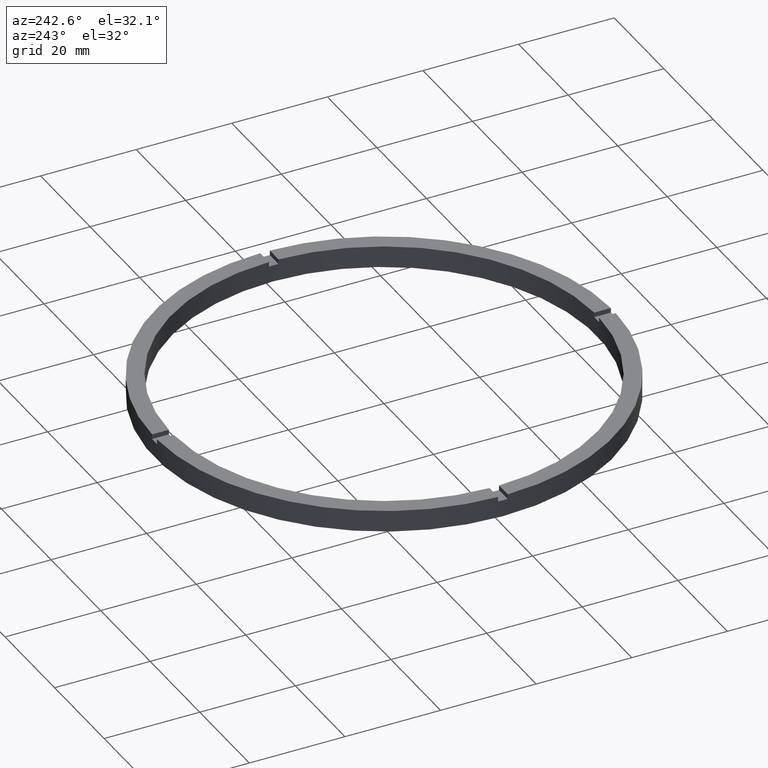
[diagram: clean part render]
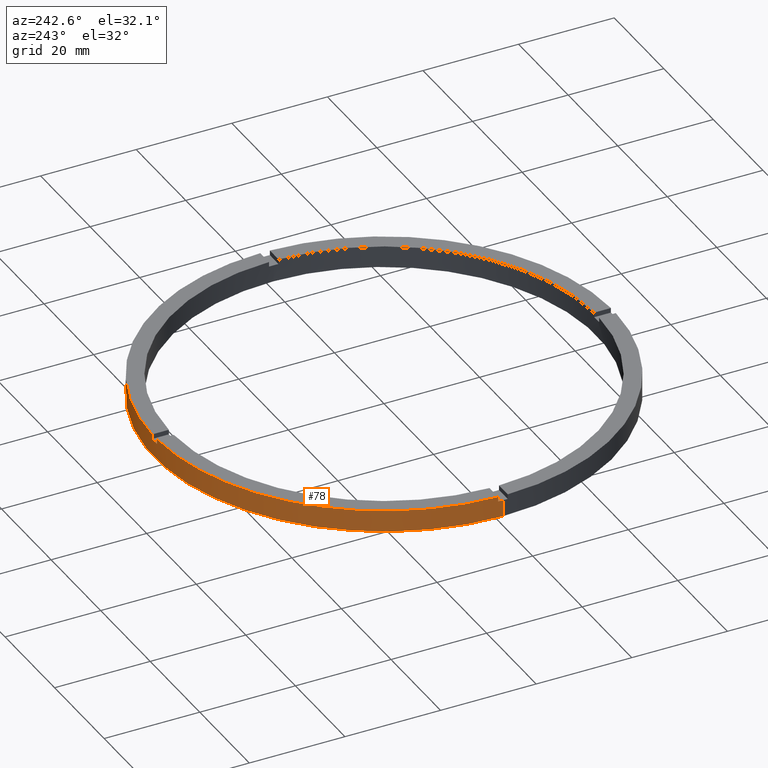
[diagram: same view with one face highlighted and labeled with its STEP entity id]
A machine part, auxiliary view. The second image highlights one B-rep face of the part: STEP entity #78.
In plain terms, the highlighted cylindrical surface (partial cylindrical patch) has radius 48 mm, axis along (-0, -0, -1).
Its self-contained STEP definition (entity closure, byte-faithful):
#1 = VERTEX_POINT ( 'NONE', #412 ) ;
#9 = ORIENTED_EDGE ( 'NONE', *, *, #677, .T. ) ;
#26 = CARTESIAN_POINT ( 'NONE',  ( 48.00000000000000711, 5.878304635907296578E-15, 4.500000000000000000 ) ) ;
#35 = LINE ( 'NONE', #26, #320 ) ;
#61 = DIRECTION ( 'NONE',  ( -1.000000000000000000, 0.000000000000000000, 0.000000000000000000 ) ) ;
#63 = CARTESIAN_POINT ( 'NONE',  ( 0.000000000000000000, 0.000000000000000000, 4.500000000000000000 ) ) ;
#64 = CARTESIAN_POINT ( 'NONE',  ( -1.000000000000026423, 47.98958220280731268, 4.500000000000000000 ) ) ;
#67 = CARTESIAN_POINT ( 'NONE',  ( -47.98958220280731268, 0.9999999999999692468, 4.500000000000000000 ) ) ;
#73 = EDGE_CURVE ( 'NONE', #731, #1, #468, .T. ) ;
#74 = DIRECTION ( 'NONE',  ( -0.000000000000000000, -0.000000000000000000, -1.000000000000000000 ) ) ;
#77 = DIRECTION ( 'NONE',  ( 0.000000000000000000, 0.000000000000000000, 1.000000000000000000 ) ) ;
#78 = ADVANCED_FACE ( 'NONE', ( #481 ), #194, .T. ) ;
#79 = VECTOR ( 'NONE', #678, 1000.000000000000000 ) ;
#80 = AXIS2_PLACEMENT_3D ( 'NONE', #495, #147, #408 ) ;
#96 = CIRCLE ( 'NONE', #736, 48.00000000000000711 ) ;
#97 = DIRECTION ( 'NONE',  ( 0.000000000000000000, 0.000000000000000000, 1.000000000000000000 ) ) ;
#105 = CIRCLE ( 'NONE', #351, 48.00000000000000711 ) ;
#111 = EDGE_CURVE ( 'NONE', #778, #449, #394, .T. ) ;
#127 = VERTEX_POINT ( 'NONE', #684 ) ;
#134 = CARTESIAN_POINT ( 'NONE',  ( 47.98958220280731979, 0.9999999999998445688, 3.499999999999999556 ) ) ;
#147 = DIRECTION ( 'NONE',  ( 0.000000000000000000, 0.000000000000000000, 1.000000000000000000 ) ) ;
#149 = CARTESIAN_POINT ( 'NONE',  ( 0.000000000000000000, 0.000000000000000000, 3.499999999999999556 ) ) ;
#176 = ORIENTED_EDGE ( 'NONE', *, *, #300, .F. ) ;
#189 = CARTESIAN_POINT ( 'NONE',  ( 48.00000000000000711, 5.878304635907296578E-15, 3.499999999999999556 ) ) ;
#194 = CYLINDRICAL_SURFACE ( 'NONE', #386, 48.00000000000000711 ) ;
#196 = VERTEX_POINT ( 'NONE', #189 ) ;
#200 = ORIENTED_EDGE ( 'NONE', *, *, #344, .F. ) ;
#219 = EDGE_CURVE ( 'NONE', #778, #498, #657, .T. ) ;
#231 = CIRCLE ( 'NONE', #238, 48.00000000000000711 ) ;
#236 = VECTOR ( 'NONE', #759, 1000.000000000000000 ) ;
#238 = AXIS2_PLACEMENT_3D ( 'NONE', #472, #308, #354 ) ;
#244 = ORIENTED_EDGE ( 'NONE', *, *, #493, .F. ) ;
#251 = LINE ( 'NONE', #606, #761 ) ;
#261 = VERTEX_POINT ( 'NONE', #309 ) ;
#265 = LINE ( 'NONE', #353, #771 ) ;
#276 = EDGE_CURVE ( 'NONE', #498, #1, #649, .T. ) ;
#300 = EDGE_CURVE ( 'NONE', #261, #490, #105, .T. ) ;
#306 = CARTESIAN_POINT ( 'NONE',  ( 47.98958220280731979, 0.9999999999998445688, 4.500000000000000000 ) ) ;
#308 = DIRECTION ( 'NONE',  ( 0.000000000000000000, 0.000000000000000000, 1.000000000000000000 ) ) ;
#309 = CARTESIAN_POINT ( 'NONE',  ( 0.9999999999999735767, 47.98958220280731268, 3.499999999999999556 ) ) ;
#313 = DIRECTION ( 'NONE',  ( -0.000000000000000000, -0.000000000000000000, -1.000000000000000000 ) ) ;
#316 = DIRECTION ( 'NONE',  ( 1.000000000000000000, 0.000000000000000000, 0.000000000000000000 ) ) ;
#320 = VECTOR ( 'NONE', #74, 1000.000000000000000 ) ;
#336 = CARTESIAN_POINT ( 'NONE',  ( 48.00000000000000711, 5.878304635907296578E-15, 0.000000000000000000 ) ) ;
#344 = EDGE_CURVE ( 'NONE', #437, #449, #96, .T. ) ;
#351 = AXIS2_PLACEMENT_3D ( 'NONE', #358, #581, #730 ) ;
#353 = CARTESIAN_POINT ( 'NONE',  ( -1.000000000000026423, 47.98958220280731268, 4.500000000000000000 ) ) ;
#354 = DIRECTION ( 'NONE',  ( 1.000000000000000000, 0.000000000000000000, 0.000000000000000000 ) ) ;
#358 = CARTESIAN_POINT ( 'NONE',  ( 0.000000000000000000, 0.000000000000000000, 3.499999999999999556 ) ) ;
#386 = AXIS2_PLACEMENT_3D ( 'NONE', #63, #313, #61 ) ;
#390 = CARTESIAN_POINT ( 'NONE',  ( -47.98958220280731268, 0.9999999999999692468, 3.499999999999999556 ) ) ;
#394 = LINE ( 'NONE', #67, #654 ) ;
#408 = DIRECTION ( 'NONE',  ( 1.000000000000000000, 0.000000000000000000, 0.000000000000000000 ) ) ;
#412 = CARTESIAN_POINT ( 'NONE',  ( -48.00000000000000711, 0.000000000000000000, 0.000000000000000000 ) ) ;
#413 = DIRECTION ( 'NONE',  ( -0.000000000000000000, -0.000000000000000000, -1.000000000000000000 ) ) ;
#414 = CARTESIAN_POINT ( 'NONE',  ( 0.9999999999999735767, 47.98958220280731268, 4.500000000000000000 ) ) ;
#436 = ORIENTED_EDGE ( 'NONE', *, *, #73, .T. ) ;
#437 = VERTEX_POINT ( 'NONE', #64 ) ;
#440 = ORIENTED_EDGE ( 'NONE', *, *, #111, .T. ) ;
#447 = CARTESIAN_POINT ( 'NONE',  ( 0.000000000000000000, 0.000000000000000000, 4.500000000000000000 ) ) ;
#449 = VERTEX_POINT ( 'NONE', #772 ) ;
#450 = AXIS2_PLACEMENT_3D ( 'NONE', #149, #553, #475 ) ;
#454 = ORIENTED_EDGE ( 'NONE', *, *, #603, .T. ) ;
#468 = CIRCLE ( 'NONE', #598, 48.00000000000000711 ) ;
#472 = CARTESIAN_POINT ( 'NONE',  ( 0.000000000000000000, 0.000000000000000000, 3.499999999999999556 ) ) ;
#475 = DIRECTION ( 'NONE',  ( 1.000000000000000000, 0.000000000000000000, 0.000000000000000000 ) ) ;
#481 = FACE_OUTER_BOUND ( 'NONE', #696, .T. ) ;
#490 = VERTEX_POINT ( 'NONE', #647 ) ;
#493 = EDGE_CURVE ( 'NONE', #557, #127, #757, .T. ) ;
#495 = CARTESIAN_POINT ( 'NONE',  ( 0.000000000000000000, 0.000000000000000000, 4.500000000000000000 ) ) ;
#498 = VERTEX_POINT ( 'NONE', #562 ) ;
#504 = CARTESIAN_POINT ( 'NONE',  ( -48.00000000000000711, 0.000000000000000000, 4.500000000000000000 ) ) ;
#521 = LINE ( 'NONE', #414, #236 ) ;
#532 = VERTEX_POINT ( 'NONE', #134 ) ;
#549 = ORIENTED_EDGE ( 'NONE', *, *, #686, .T. ) ;
#553 = DIRECTION ( 'NONE',  ( 0.000000000000000000, 0.000000000000000000, 1.000000000000000000 ) ) ;
#557 = VERTEX_POINT ( 'NONE', #306 ) ;
#562 = CARTESIAN_POINT ( 'NONE',  ( -48.00000000000000711, 0.000000000000000000, 3.499999999999999556 ) ) ;
#569 = DIRECTION ( 'NONE',  ( 0.000000000000000000, 0.000000000000000000, 1.000000000000000000 ) ) ;
#577 = CARTESIAN_POINT ( 'NONE',  ( 0.000000000000000000, 0.000000000000000000, 0.000000000000000000 ) ) ;
#581 = DIRECTION ( 'NONE',  ( 0.000000000000000000, -0.000000000000000000, 1.000000000000000000 ) ) ;
#598 = AXIS2_PLACEMENT_3D ( 'NONE', #577, #569, #316 ) ;
#603 = EDGE_CURVE ( 'NONE', #437, #490, #265, .T. ) ;
#606 = CARTESIAN_POINT ( 'NONE',  ( 47.98958220280731979, 0.9999999999998445688, 4.500000000000000000 ) ) ;
#628 = DIRECTION ( 'NONE',  ( 1.000000000000000000, 0.000000000000000000, 0.000000000000000000 ) ) ;
#647 = CARTESIAN_POINT ( 'NONE',  ( -1.000000000000026423, 47.98958220280731268, 3.499999999999999556 ) ) ;
#649 = LINE ( 'NONE', #504, #79 ) ;
#654 = VECTOR ( 'NONE', #97, 1000.000000000000000 ) ;
#655 = DIRECTION ( 'NONE',  ( -0.000000000000000000, -0.000000000000000000, -1.000000000000000000 ) ) ;
#657 = CIRCLE ( 'NONE', #450, 48.00000000000000711 ) ;
#677 = EDGE_CURVE ( 'NONE', #557, #532, #251, .T. ) ;
#678 = DIRECTION ( 'NONE',  ( -0.000000000000000000, -0.000000000000000000, -1.000000000000000000 ) ) ;
#683 = EDGE_CURVE ( 'NONE', #196, #532, #231, .T. ) ;
#684 = CARTESIAN_POINT ( 'NONE',  ( 0.9999999999999735767, 47.98958220280731268, 4.500000000000000000 ) ) ;
#686 = EDGE_CURVE ( 'NONE', #261, #127, #521, .T. ) ;
#695 = ORIENTED_EDGE ( 'NONE', *, *, #219, .F. ) ;
#696 = EDGE_LOOP ( 'NONE', ( #703, #769, #436, #715, #695, #440, #200, #454, #176, #549, #244, #9 ) ) ;
#703 = ORIENTED_EDGE ( 'NONE', *, *, #683, .F. ) ;
#715 = ORIENTED_EDGE ( 'NONE', *, *, #276, .F. ) ;
#730 = DIRECTION ( 'NONE',  ( 1.000000000000000000, 0.000000000000000000, 0.000000000000000000 ) ) ;
#731 = VERTEX_POINT ( 'NONE', #336 ) ;
#736 = AXIS2_PLACEMENT_3D ( 'NONE', #447, #77, #628 ) ;
#753 = EDGE_CURVE ( 'NONE', #196, #731, #35, .T. ) ;
#757 = CIRCLE ( 'NONE', #80, 48.00000000000000711 ) ;
#759 = DIRECTION ( 'NONE',  ( 0.000000000000000000, 0.000000000000000000, 1.000000000000000000 ) ) ;
#761 = VECTOR ( 'NONE', #655, 1000.000000000000000 ) ;
#769 = ORIENTED_EDGE ( 'NONE', *, *, #753, .T. ) ;
#771 = VECTOR ( 'NONE', #413, 1000.000000000000000 ) ;
#772 = CARTESIAN_POINT ( 'NONE',  ( -47.98958220280731268, 0.9999999999999692468, 4.500000000000000000 ) ) ;
#778 = VERTEX_POINT ( 'NONE', #390 ) ;